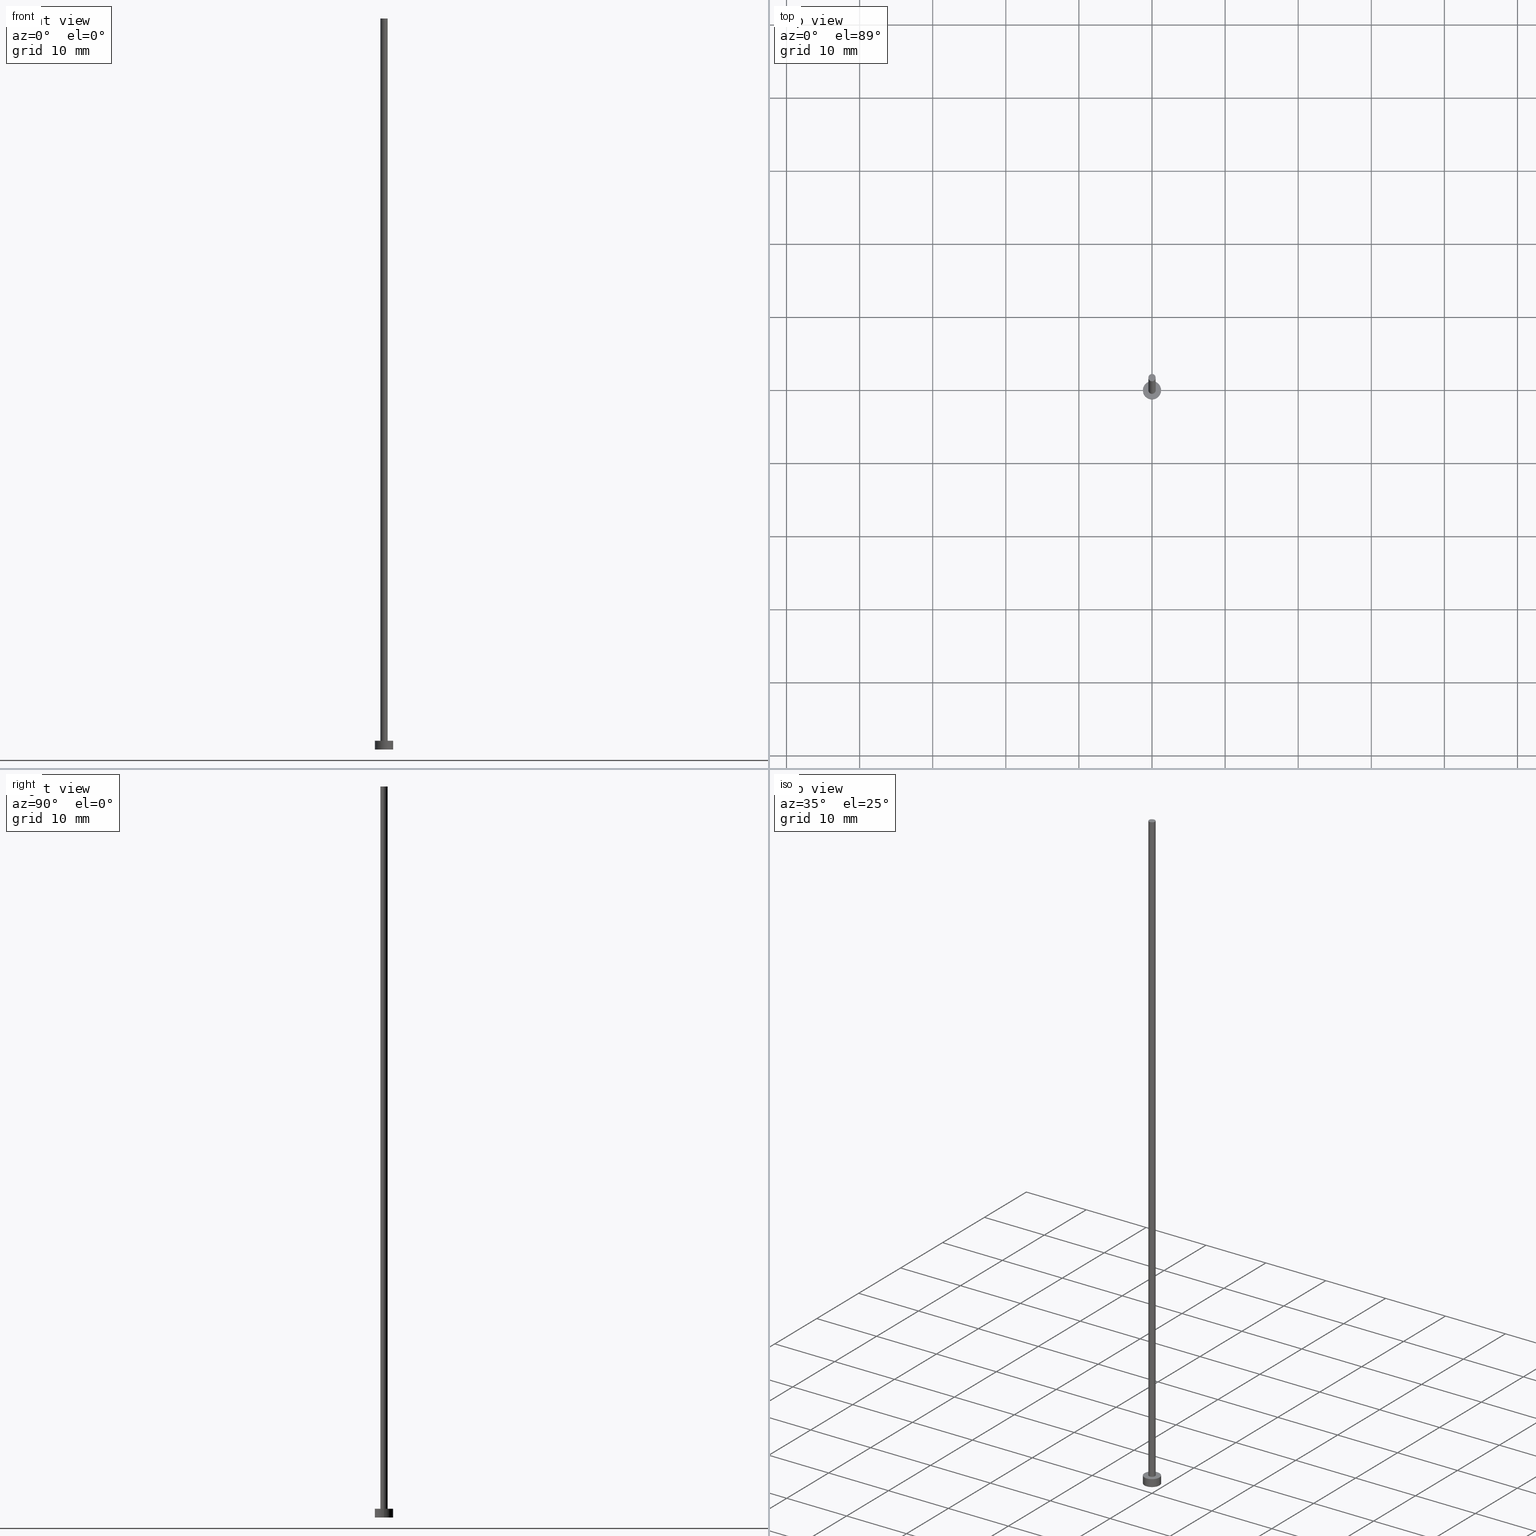
[diagram: canonical four-view strip — front | top / right | iso, engineering-drawing reading convention]
A machine part, canonical four-view strip (front | top / right | iso — engineering-drawing reading convention). The complete STEP part file that produces these views, byte-faithful:
ISO-10303-21;
HEADER;
FILE_DESCRIPTION (( 'STEP AP203' ),
    '1' );
FILE_NAME ('06ce.STEP',
    '2023-02-13T15:28:25',
    ( '' ),
    ( '' ),
    'SwSTEP 2.0',
    'SolidWorks 2019',
    '' );
FILE_SCHEMA (( 'CONFIG_CONTROL_DESIGN' ));
ENDSEC;

DATA;
#1 = ORGANIZATION ( 'NEUR�EN�', 'NEUR�EN�', '' ) ;
#2 = APPLICATION_PROTOCOL_DEFINITION ( 'international standard', 'config_control_design', 1994, #152 ) ;
#3 = CARTESIAN_POINT ( 'NONE',  ( -1.250000000000000000, 0.000000000000000000, 1.199999999999999956 ) ) ;
#4 = VERTEX_POINT ( 'NONE', #168 ) ;
#5 = ADVANCED_FACE ( 'NONE', ( #67 ), #47, .T. ) ;
#6 = PERSON_AND_ORGANIZATION ( #70, #1 ) ;
#7 = DIRECTION ( 'NONE',  ( 1.000000000000000000, 0.000000000000000000, 0.000000000000000000 ) ) ;
#8 = EDGE_LOOP ( 'NONE', ( #225, #30 ) ) ;
#9 = PERSON_AND_ORGANIZATION ( #70, #1 ) ;
#10 = DIRECTION ( 'NONE',  ( 1.000000000000000000, 0.000000000000000000, 0.000000000000000000 ) ) ;
#11 = ADVANCED_FACE ( 'NONE', ( #219 ), #42, .T. ) ;
#12 = CALENDAR_DATE ( 2023, 13, 2 ) ;
#13 = CC_DESIGN_PERSON_AND_ORGANIZATION_ASSIGNMENT ( #207, #126, ( #196 ) ) ;
#14 = ORIENTED_EDGE ( 'NONE', *, *, #182, .T. ) ;
#15 = PERSON_AND_ORGANIZATION_ROLE ( 'design_supplier' ) ;
#16 = EDGE_CURVE ( 'NONE', #4, #247, #215, .T. ) ;
#17 = PERSON_AND_ORGANIZATION ( #70, #1 ) ;
#18 = DIRECTION ( 'NONE',  ( -0.000000000000000000, -0.000000000000000000, -1.000000000000000000 ) ) ;
#19 = APPROVAL_PERSON_ORGANIZATION ( #9, #28, #84 ) ;
#20 = CARTESIAN_POINT ( 'NONE',  ( 0.000000000000000000, 0.000000000000000000, 100.0000000000000000 ) ) ;
#21 = DIRECTION ( 'NONE',  ( 1.000000000000000000, 0.000000000000000000, 0.000000000000000000 ) ) ;
#22 = ADVANCED_FACE ( 'NONE', ( #162 ), #240, .T. ) ;
#23 = SHAPE_DEFINITION_REPRESENTATION ( #98, #62 ) ;
#24 = CARTESIAN_POINT ( 'NONE',  ( 0.000000000000000000, 0.000000000000000000, 0.000000000000000000 ) ) ;
#25 = CARTESIAN_POINT ( 'NONE',  ( 0.000000000000000000, 0.000000000000000000, 1.199999999999999956 ) ) ;
#26 = VECTOR ( 'NONE', #79, 1000.000000000000000 ) ;
#27 = DATE_AND_TIME ( #228, #200 ) ;
#28 = APPROVAL ( #189, 'NEUR�EN�' ) ;
#29 = AXIS2_PLACEMENT_3D ( 'NONE', #222, #64, #147 ) ;
#30 = ORIENTED_EDGE ( 'NONE', *, *, #132, .T. ) ;
#31 = DATE_TIME_ROLE ( 'classification_date' ) ;
#32 = CC_DESIGN_PERSON_AND_ORGANIZATION_ASSIGNMENT ( #17, #120, ( #59 ) ) ;
#33 = DIRECTION ( 'NONE',  ( 1.000000000000000000, 0.000000000000000000, -0.000000000000000000 ) ) ;
#34 = APPLICATION_PROTOCOL_DEFINITION ( 'international standard', 'config_control_design', 1994, #46 ) ;
#35 = CC_DESIGN_PERSON_AND_ORGANIZATION_ASSIGNMENT ( #6, #210, ( #115 ) ) ;
#36 = CARTESIAN_POINT ( 'NONE',  ( 0.5000000000000000000, 6.123233995736766036E-17, 100.0000000000000000 ) ) ;
#37 = EDGE_LOOP ( 'NONE', ( #113, #102, #106, #125 ) ) ;
#38 = ORIENTED_EDGE ( 'NONE', *, *, #40, .F. ) ;
#39 = DIRECTION ( 'NONE',  ( -0.000000000000000000, -0.000000000000000000, -1.000000000000000000 ) ) ;
#40 = EDGE_CURVE ( 'NONE', #247, #4, #220, .T. ) ;
#41 = PLANE ( 'NONE',  #204 ) ;
#42 = CYLINDRICAL_SURFACE ( 'NONE', #94, 0.5000000000000000000 ) ;
#43 = VERTEX_POINT ( 'NONE', #99 ) ;
#44 = DIRECTION ( 'NONE',  ( 0.000000000000000000, 0.000000000000000000, 1.000000000000000000 ) ) ;
#45 = DATE_TIME_ROLE ( 'creation_date' ) ;
#46 = APPLICATION_CONTEXT ( 'configuration controlled 3d designs of mechanical parts and assemblies' ) ;
#47 = CYLINDRICAL_SURFACE ( 'NONE', #54, 1.250000000000000000 ) ;
#48 = EDGE_LOOP ( 'NONE', ( #254, #63, #144, #87 ) ) ;
#49 = PRODUCT_RELATED_PRODUCT_CATEGORY ( 'detail', '', ( #59 ) ) ;
#50 = AXIS2_PLACEMENT_3D ( 'NONE', #25, #187, #7 ) ;
#51 = EDGE_LOOP ( 'NONE', ( #229, #69 ) ) ;
#52 = ORIENTED_EDGE ( 'NONE', *, *, #231, .T. ) ;
#53 = PLANE ( 'NONE',  #29 ) ;
#54 = AXIS2_PLACEMENT_3D ( 'NONE', #150, #127, #242 ) ;
#55 = LOCAL_TIME ( 16, 28, 25.00000000000000000, #188 ) ;
#56 = EDGE_CURVE ( 'NONE', #43, #205, #195, .T. ) ;
#57 = EDGE_LOOP ( 'NONE', ( #122, #74, #141, #198 ) ) ;
#58 = CARTESIAN_POINT ( 'NONE',  ( -0.5000000000000000000, 0.000000000000000000, 1.199999999999999956 ) ) ;
#59 = PRODUCT ( '06ce', '06ce', '', ( #134 ) ) ;
#60 = DIRECTION ( 'NONE',  ( 0.000000000000000000, 0.000000000000000000, 1.000000000000000000 ) ) ;
#61 = DIRECTION ( 'NONE',  ( 0.000000000000000000, 0.000000000000000000, 1.000000000000000000 ) ) ;
#62 = ADVANCED_BREP_SHAPE_REPRESENTATION ( '06ce', ( #157, #72 ), #78 ) ;
#63 = ORIENTED_EDGE ( 'NONE', *, *, #56, .F. ) ;
#64 = DIRECTION ( 'NONE',  ( 0.000000000000000000, 0.000000000000000000, 1.000000000000000000 ) ) ;
#65 = CALENDAR_DATE ( 2023, 13, 2 ) ;
#66 = VECTOR ( 'NONE', #18, 1000.000000000000000 ) ;
#67 = FACE_OUTER_BOUND ( 'NONE', #48, .T. ) ;
#68 = EDGE_CURVE ( 'NONE', #205, #43, #186, .T. ) ;
#69 = ORIENTED_EDGE ( 'NONE', *, *, #68, .T. ) ;
#70 = PERSON ( 'NEUR�EN�', 'NEUR�EN�', 'NEUR�EN�', ('NEUR�EN�'), ('NEUR�EN�'), ('NEUR�EN�') ) ;
#71 = AXIS2_PLACEMENT_3D ( 'NONE', #227, #44, #121 ) ;
#72 = AXIS2_PLACEMENT_3D ( 'NONE', #96, #237, #136 ) ;
#73 = DATE_AND_TIME ( #251, #114 ) ;
#74 = ORIENTED_EDGE ( 'NONE', *, *, #238, .T. ) ;
#75 = APPROVAL_ROLE ( '' ) ;
#76 = AXIS2_PLACEMENT_3D ( 'NONE', #24, #60, #202 ) ;
#77 = DIRECTION ( 'NONE',  ( 0.000000000000000000, 0.000000000000000000, 1.000000000000000000 ) ) ;
#78 =( GEOMETRIC_REPRESENTATION_CONTEXT ( 3 ) GLOBAL_UNCERTAINTY_ASSIGNED_CONTEXT ( ( #90 ) ) GLOBAL_UNIT_ASSIGNED_CONTEXT ( ( #250, #156, #173 ) ) REPRESENTATION_CONTEXT ( 'NONE', 'WORKASPACE' ) );
#79 = DIRECTION ( 'NONE',  ( -0.000000000000000000, -0.000000000000000000, -1.000000000000000000 ) ) ;
#80 = VERTEX_POINT ( 'NONE', #85 ) ;
#81 = ADVANCED_FACE ( 'NONE', ( #165 ), #116, .T. ) ;
#82 = DIRECTION ( 'NONE',  ( 0.000000000000000000, 0.000000000000000000, 1.000000000000000000 ) ) ;
#83 = DIRECTION ( 'NONE',  ( -0.000000000000000000, -0.000000000000000000, -1.000000000000000000 ) ) ;
#84 = APPROVAL_ROLE ( '' ) ;
#85 = CARTESIAN_POINT ( 'NONE',  ( 0.5000000000000000000, 6.123233995736766036E-17, 1.199999999999999956 ) ) ;
#86 = LINE ( 'NONE', #213, #249 ) ;
#87 = ORIENTED_EDGE ( 'NONE', *, *, #40, .T. ) ;
#88 = CC_DESIGN_DATE_AND_TIME_ASSIGNMENT ( #211, #31, ( #196 ) ) ;
#89 = COORDINATED_UNIVERSAL_TIME_OFFSET ( 1, 0, .AHEAD. ) ;
#90 = UNCERTAINTY_MEASURE_WITH_UNIT (LENGTH_MEASURE( 1.000000000000000082E-05 ), #250, 'distance_accuracy_value', 'NONE');
#91 = AXIS2_PLACEMENT_3D ( 'NONE', #244, #61, #143 ) ;
#92 = EDGE_LOOP ( 'NONE', ( #179, #154, #14, #52 ) ) ;
#93 = APPROVAL ( #190, 'NEUR�EN�' ) ;
#94 = AXIS2_PLACEMENT_3D ( 'NONE', #105, #39, #119 ) ;
#95 = DIRECTION ( 'NONE',  ( -0.000000000000000000, -0.000000000000000000, -1.000000000000000000 ) ) ;
#96 = CARTESIAN_POINT ( 'NONE',  ( 0.000000000000000000, 0.000000000000000000, 0.000000000000000000 ) ) ;
#97 = CIRCLE ( 'NONE', #91, 0.5000000000000000000 ) ;
#98 = PRODUCT_DEFINITION_SHAPE ( 'NONE', 'NONE',  #115 ) ;
#99 = CARTESIAN_POINT ( 'NONE',  ( -1.250000000000000000, 0.000000000000000000, 1.199999999999999956 ) ) ;
#100 = LINE ( 'NONE', #166, #129 ) ;
#101 = PERSON_AND_ORGANIZATION ( #70, #1 ) ;
#102 = ORIENTED_EDGE ( 'NONE', *, *, #161, .T. ) ;
#103 = LOCAL_TIME ( 16, 28, 25.00000000000000000, #167 ) ;
#104 = APPROVAL_STATUS ( 'not_yet_approved' ) ;
#105 = CARTESIAN_POINT ( 'NONE',  ( 0.000000000000000000, 0.000000000000000000, 100.0000000000000000 ) ) ;
#106 = ORIENTED_EDGE ( 'NONE', *, *, #212, .T. ) ;
#107 = VERTEX_POINT ( 'NONE', #160 ) ;
#108 = EDGE_CURVE ( 'NONE', #43, #247, #170, .T. ) ;
#109 = CALENDAR_DATE ( 2023, 13, 2 ) ;
#110 = AXIS2_PLACEMENT_3D ( 'NONE', #218, #145, #245 ) ;
#111 = EDGE_LOOP ( 'NONE', ( #38, #193 ) ) ;
#112 = ADVANCED_FACE ( 'NONE', ( #159 ), #117, .T. ) ;
#113 = ORIENTED_EDGE ( 'NONE', *, *, #132, .F. ) ;
#114 = LOCAL_TIME ( 16, 28, 25.00000000000000000, #89 ) ;
#115 = PRODUCT_DEFINITION ( 'NEZN�M�', '', #239, #128 ) ;
#116 = PLANE ( 'NONE',  #171 ) ;
#117 = CYLINDRICAL_SURFACE ( 'NONE', #180, 1.250000000000000000 ) ;
#118 = CARTESIAN_POINT ( 'NONE',  ( 0.000000000000000000, 0.000000000000000000, 0.000000000000000000 ) ) ;
#119 = DIRECTION ( 'NONE',  ( -1.000000000000000000, 0.000000000000000000, 0.000000000000000000 ) ) ;
#120 = PERSON_AND_ORGANIZATION_ROLE ( 'design_owner' ) ;
#121 = DIRECTION ( 'NONE',  ( 1.000000000000000000, 0.000000000000000000, 0.000000000000000000 ) ) ;
#122 = ORIENTED_EDGE ( 'NONE', *, *, #68, .F. ) ;
#123 = CC_DESIGN_APPROVAL ( #28, ( #115 ) ) ;
#124 = DATE_AND_TIME ( #65, #103 ) ;
#125 = ORIENTED_EDGE ( 'NONE', *, *, #182, .F. ) ;
#126 = PERSON_AND_ORGANIZATION_ROLE ( 'classification_officer' ) ;
#127 = DIRECTION ( 'NONE',  ( -0.000000000000000000, -0.000000000000000000, -1.000000000000000000 ) ) ;
#128 = DESIGN_CONTEXT ( 'detailed design', #46, 'design' ) ;
#129 = VECTOR ( 'NONE', #248, 1000.000000000000000 ) ;
#130 = DIRECTION ( 'NONE',  ( 0.000000000000000000, 0.000000000000000000, 1.000000000000000000 ) ) ;
#131 = ORIENTED_EDGE ( 'NONE', *, *, #231, .F. ) ;
#132 = EDGE_CURVE ( 'NONE', #107, #223, #148, .T. ) ;
#133 = AXIS2_PLACEMENT_3D ( 'NONE', #224, #169, #140 ) ;
#134 = MECHANICAL_CONTEXT ( 'NONE', #152, 'mechanical' ) ;
#135 = CARTESIAN_POINT ( 'NONE',  ( 0.000000000000000000, 0.000000000000000000, 1.199999999999999956 ) ) ;
#136 = DIRECTION ( 'NONE',  ( 1.000000000000000000, 0.000000000000000000, 0.000000000000000000 ) ) ;
#137 = CARTESIAN_POINT ( 'NONE',  ( 0.000000000000000000, 0.000000000000000000, 0.000000000000000000 ) ) ;
#138 = CC_DESIGN_PERSON_AND_ORGANIZATION_ASSIGNMENT ( #164, #15, ( #239 ) ) ;
#139 = CARTESIAN_POINT ( 'NONE',  ( 0.000000000000000000, 0.000000000000000000, 100.0000000000000000 ) ) ;
#140 = DIRECTION ( 'NONE',  ( 1.000000000000000000, 0.000000000000000000, 0.000000000000000000 ) ) ;
#141 = ORIENTED_EDGE ( 'NONE', *, *, #16, .T. ) ;
#142 = AXIS2_PLACEMENT_3D ( 'NONE', #183, #77, #21 ) ;
#143 = DIRECTION ( 'NONE',  ( 1.000000000000000000, 0.000000000000000000, 0.000000000000000000 ) ) ;
#144 = ORIENTED_EDGE ( 'NONE', *, *, #108, .T. ) ;
#145 = DIRECTION ( 'NONE',  ( 0.000000000000000000, 0.000000000000000000, 1.000000000000000000 ) ) ;
#146 = VERTEX_POINT ( 'NONE', #58 ) ;
#147 = DIRECTION ( 'NONE',  ( 1.000000000000000000, 0.000000000000000000, -0.000000000000000000 ) ) ;
#148 = CIRCLE ( 'NONE', #142, 0.5000000000000000000 ) ;
#149 = APPROVAL_DATE_TIME ( #124, #28 ) ;
#150 = CARTESIAN_POINT ( 'NONE',  ( 0.000000000000000000, 0.000000000000000000, 1.199999999999999956 ) ) ;
#151 = AXIS2_PLACEMENT_3D ( 'NONE', #137, #82, #10 ) ;
#152 = APPLICATION_CONTEXT ( 'configuration controlled 3d designs of mechanical parts and assemblies' ) ;
#153 = COORDINATED_UNIVERSAL_TIME_OFFSET ( 1, 0, .AHEAD. ) ;
#154 = ORIENTED_EDGE ( 'NONE', *, *, #178, .F. ) ;
#155 = APPROVAL_DATE_TIME ( #73, #93 ) ;
#156 =( NAMED_UNIT ( * ) PLANE_ANGLE_UNIT ( ) SI_UNIT ( $, .RADIAN. ) );
#157 = MANIFOLD_SOLID_BREP ( 'P�idat vysunut�m3', #235 ) ;
#158 = FACE_OUTER_BOUND ( 'NONE', #51, .T. ) ;
#159 = FACE_OUTER_BOUND ( 'NONE', #57, .T. ) ;
#160 = CARTESIAN_POINT ( 'NONE',  ( 0.5000000000000000000, 6.123233995736766036E-17, 100.0000000000000000 ) ) ;
#161 = EDGE_CURVE ( 'NONE', #107, #80, #216, .T. ) ;
#162 = FACE_OUTER_BOUND ( 'NONE', #37, .T. ) ;
#163 = CARTESIAN_POINT ( 'NONE',  ( -1.250000000000000000, 0.000000000000000000, 0.000000000000000000 ) ) ;
#164 = PERSON_AND_ORGANIZATION ( #70, #1 ) ;
#165 = FACE_OUTER_BOUND ( 'NONE', #8, .T. ) ;
#166 = CARTESIAN_POINT ( 'NONE',  ( 1.250000000000000000, 1.530808498934191571E-16, 1.199999999999999956 ) ) ;
#167 = COORDINATED_UNIVERSAL_TIME_OFFSET ( 1, 0, .AHEAD. ) ;
#168 = CARTESIAN_POINT ( 'NONE',  ( 1.250000000000000000, 1.530808498934191571E-16, 0.000000000000000000 ) ) ;
#169 = DIRECTION ( 'NONE',  ( 0.000000000000000000, 0.000000000000000000, 1.000000000000000000 ) ) ;
#170 = LINE ( 'NONE', #3, #26 ) ;
#171 = AXIS2_PLACEMENT_3D ( 'NONE', #20, #184, #181 ) ;
#172 = APPROVAL_PERSON_ORGANIZATION ( #253, #93, #75 ) ;
#173 =( NAMED_UNIT ( * ) SI_UNIT ( $, .STERADIAN. ) SOLID_ANGLE_UNIT ( ) );
#174 = ADVANCED_FACE ( 'NONE', ( #177, #158 ), #53, .T. ) ;
#175 = SECURITY_CLASSIFICATION_LEVEL ( 'unclassified' ) ;
#176 = ORIENTED_EDGE ( 'NONE', *, *, #212, .F. ) ;
#177 = FACE_BOUND ( 'NONE', #201, .T. ) ;
#178 = EDGE_CURVE ( 'NONE', #223, #107, #97, .T. ) ;
#179 = ORIENTED_EDGE ( 'NONE', *, *, #161, .F. ) ;
#180 = AXIS2_PLACEMENT_3D ( 'NONE', #135, #95, #203 ) ;
#181 = DIRECTION ( 'NONE',  ( 1.000000000000000000, 0.000000000000000000, -0.000000000000000000 ) ) ;
#182 = EDGE_CURVE ( 'NONE', #223, #146, #86, .T. ) ;
#183 = CARTESIAN_POINT ( 'NONE',  ( 0.000000000000000000, 0.000000000000000000, 100.0000000000000000 ) ) ;
#184 = DIRECTION ( 'NONE',  ( 0.000000000000000000, 0.000000000000000000, 1.000000000000000000 ) ) ;
#185 = PERSON_AND_ORGANIZATION ( #70, #1 ) ;
#186 = CIRCLE ( 'NONE', #71, 1.250000000000000000 ) ;
#187 = DIRECTION ( 'NONE',  ( 0.000000000000000000, 0.000000000000000000, 1.000000000000000000 ) ) ;
#188 = COORDINATED_UNIVERSAL_TIME_OFFSET ( 1, 0, .AHEAD. ) ;
#189 = APPROVAL_STATUS ( 'not_yet_approved' ) ;
#190 = APPROVAL_STATUS ( 'not_yet_approved' ) ;
#191 = CC_DESIGN_PERSON_AND_ORGANIZATION_ASSIGNMENT ( #185, #233, ( #239 ) ) ;
#192 = CIRCLE ( 'NONE', #50, 0.5000000000000000000 ) ;
#193 = ORIENTED_EDGE ( 'NONE', *, *, #16, .F. ) ;
#194 = APPROVAL ( #104, 'NEUR�EN�' ) ;
#195 = CIRCLE ( 'NONE', #110, 1.250000000000000000 ) ;
#196 = SECURITY_CLASSIFICATION ( '', '', #175 ) ;
#197 = CC_DESIGN_SECURITY_CLASSIFICATION ( #196, ( #239 ) ) ;
#198 = ORIENTED_EDGE ( 'NONE', *, *, #108, .F. ) ;
#199 = APPROVAL_PERSON_ORGANIZATION ( #101, #194, #234 ) ;
#200 = LOCAL_TIME ( 16, 28, 25.00000000000000000, #246 ) ;
#201 = EDGE_LOOP ( 'NONE', ( #131, #176 ) ) ;
#202 = DIRECTION ( 'NONE',  ( 1.000000000000000000, 0.000000000000000000, 0.000000000000000000 ) ) ;
#203 = DIRECTION ( 'NONE',  ( -1.000000000000000000, 0.000000000000000000, 0.000000000000000000 ) ) ;
#204 = AXIS2_PLACEMENT_3D ( 'NONE', #118, #130, #33 ) ;
#205 = VERTEX_POINT ( 'NONE', #208 ) ;
#206 = DIRECTION ( 'NONE',  ( -1.000000000000000000, 0.000000000000000000, 0.000000000000000000 ) ) ;
#207 = PERSON_AND_ORGANIZATION ( #70, #1 ) ;
#208 = CARTESIAN_POINT ( 'NONE',  ( 1.250000000000000000, 1.530808498934191571E-16, 1.199999999999999956 ) ) ;
#209 = CC_DESIGN_APPROVAL ( #93, ( #196 ) ) ;
#210 = PERSON_AND_ORGANIZATION_ROLE ( 'creator' ) ;
#211 = DATE_AND_TIME ( #109, #55 ) ;
#212 = EDGE_CURVE ( 'NONE', #80, #146, #243, .T. ) ;
#213 = CARTESIAN_POINT ( 'NONE',  ( -0.5000000000000000000, 0.000000000000000000, 100.0000000000000000 ) ) ;
#214 = AXIS2_PLACEMENT_3D ( 'NONE', #139, #221, #206 ) ;
#215 = CIRCLE ( 'NONE', #76, 1.250000000000000000 ) ;
#216 = LINE ( 'NONE', #36, #66 ) ;
#217 = LOCAL_TIME ( 16, 28, 25.00000000000000000, #153 ) ;
#218 = CARTESIAN_POINT ( 'NONE',  ( 0.000000000000000000, 0.000000000000000000, 1.199999999999999956 ) ) ;
#219 = FACE_OUTER_BOUND ( 'NONE', #92, .T. ) ;
#220 = CIRCLE ( 'NONE', #151, 1.250000000000000000 ) ;
#221 = DIRECTION ( 'NONE',  ( -0.000000000000000000, -0.000000000000000000, -1.000000000000000000 ) ) ;
#222 = CARTESIAN_POINT ( 'NONE',  ( 0.000000000000000000, 0.000000000000000000, 1.199999999999999956 ) ) ;
#223 = VERTEX_POINT ( 'NONE', #232 ) ;
#224 = CARTESIAN_POINT ( 'NONE',  ( 0.000000000000000000, 0.000000000000000000, 1.199999999999999956 ) ) ;
#225 = ORIENTED_EDGE ( 'NONE', *, *, #178, .T. ) ;
#226 = DATE_AND_TIME ( #12, #217 ) ;
#227 = CARTESIAN_POINT ( 'NONE',  ( 0.000000000000000000, 0.000000000000000000, 1.199999999999999956 ) ) ;
#228 = CALENDAR_DATE ( 2023, 13, 2 ) ;
#229 = ORIENTED_EDGE ( 'NONE', *, *, #56, .T. ) ;
#230 = APPROVAL_DATE_TIME ( #226, #194 ) ;
#231 = EDGE_CURVE ( 'NONE', #146, #80, #192, .T. ) ;
#232 = CARTESIAN_POINT ( 'NONE',  ( -0.5000000000000000000, 0.000000000000000000, 100.0000000000000000 ) ) ;
#233 = PERSON_AND_ORGANIZATION_ROLE ( 'creator' ) ;
#234 = APPROVAL_ROLE ( '' ) ;
#235 = CLOSED_SHELL ( 'NONE', ( #22, #112, #5, #174, #255, #11, #81 ) ) ;
#236 = CC_DESIGN_DATE_AND_TIME_ASSIGNMENT ( #27, #45, ( #115 ) ) ;
#237 = DIRECTION ( 'NONE',  ( 0.000000000000000000, 0.000000000000000000, 1.000000000000000000 ) ) ;
#238 = EDGE_CURVE ( 'NONE', #205, #4, #100, .T. ) ;
#239 = PRODUCT_DEFINITION_FORMATION_WITH_SPECIFIED_SOURCE ( 'LIBOVOLN�', '', #59, .NOT_KNOWN. ) ;
#240 = CYLINDRICAL_SURFACE ( 'NONE', #214, 0.5000000000000000000 ) ;
#241 = FACE_OUTER_BOUND ( 'NONE', #111, .T. ) ;
#242 = DIRECTION ( 'NONE',  ( -1.000000000000000000, 0.000000000000000000, 0.000000000000000000 ) ) ;
#243 = CIRCLE ( 'NONE', #133, 0.5000000000000000000 ) ;
#244 = CARTESIAN_POINT ( 'NONE',  ( 0.000000000000000000, 0.000000000000000000, 100.0000000000000000 ) ) ;
#245 = DIRECTION ( 'NONE',  ( 1.000000000000000000, 0.000000000000000000, 0.000000000000000000 ) ) ;
#246 = COORDINATED_UNIVERSAL_TIME_OFFSET ( 1, 0, .AHEAD. ) ;
#247 = VERTEX_POINT ( 'NONE', #163 ) ;
#248 = DIRECTION ( 'NONE',  ( -0.000000000000000000, -0.000000000000000000, -1.000000000000000000 ) ) ;
#249 = VECTOR ( 'NONE', #83, 1000.000000000000000 ) ;
#250 =( LENGTH_UNIT ( ) NAMED_UNIT ( * ) SI_UNIT ( .MILLI., .METRE. ) );
#251 = CALENDAR_DATE ( 2023, 13, 2 ) ;
#252 = CC_DESIGN_APPROVAL ( #194, ( #239 ) ) ;
#253 = PERSON_AND_ORGANIZATION ( #70, #1 ) ;
#254 = ORIENTED_EDGE ( 'NONE', *, *, #238, .F. ) ;
#255 = ADVANCED_FACE ( 'NONE', ( #241 ), #41, .F. ) ;
ENDSEC;
END-ISO-10303-21;
